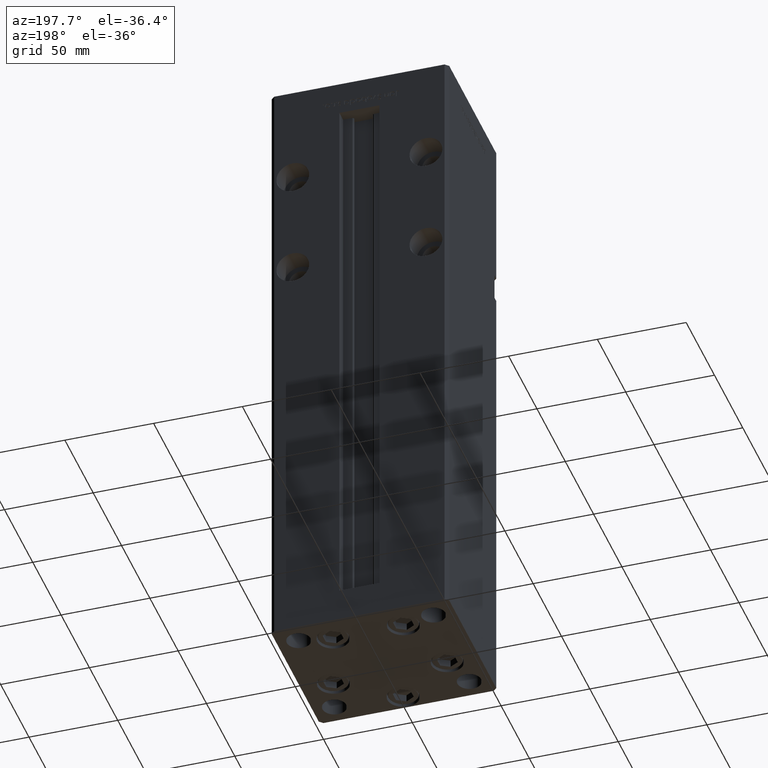
[diagram: clean part render]
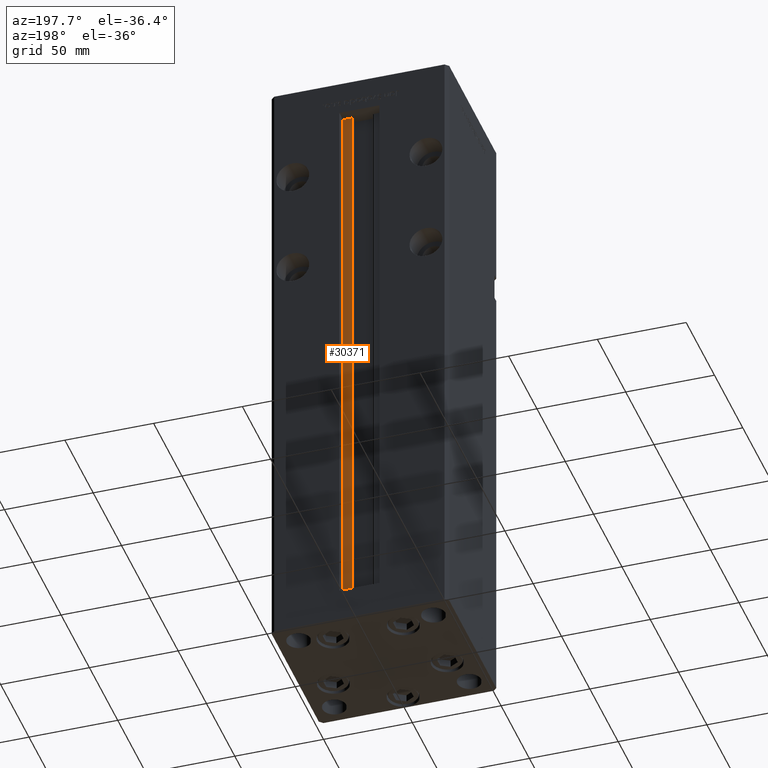
[diagram: same view with one face highlighted and labeled with its STEP entity id]
A machine part, auxiliary view. The second image highlights one B-rep face of the part: STEP entity #30371.
In plain terms, the highlighted planar face has unit normal (0, -1, 0).
Its self-contained STEP definition (entity closure, byte-faithful):
#197 = EDGE_CURVE ( 'NONE', #46069, #13504, #32832, .T. ) ;
#1192 = VERTEX_POINT ( 'NONE', #17697 ) ;
#3664 = DIRECTION ( 'NONE',  ( 0.000000000000000000, -0.000000000000000000, -1.000000000000000000 ) ) ;
#4510 = CARTESIAN_POINT ( 'NONE',  ( 11.24999999999999645, 37.00000000000000000, 0.000000000000000000 ) ) ;
#9275 = ORIENTED_EDGE ( 'NONE', *, *, #21850, .F. ) ;
#11483 = DIRECTION ( 'NONE',  ( 0.000000000000000000, -1.000000000000000000, 0.000000000000000000 ) ) ;
#11815 = CARTESIAN_POINT ( 'NONE',  ( 0.000000000000000000, 37.00000000000000000, 318.5000000000000000 ) ) ;
#13504 = VERTEX_POINT ( 'NONE', #21575 ) ;
#13936 = VECTOR ( 'NONE', #47947, 1000.000000000000000 ) ;
#15839 = DIRECTION ( 'NONE',  ( -1.000000000000000000, 0.000000000000000000, 0.000000000000000000 ) ) ;
#16221 = CARTESIAN_POINT ( 'NONE',  ( 6.183333333333996151, 37.00000000000000000, 0.000000000000000000 ) ) ;
#16947 = EDGE_CURVE ( 'NONE', #1192, #35306, #43899, .T. ) ;
#17697 = CARTESIAN_POINT ( 'NONE',  ( 6.183333333333996151, 37.00000000000000000, 0.000000000000000000 ) ) ;
#19474 = DIRECTION ( 'NONE',  ( 1.000000000000000000, 0.000000000000000000, 0.000000000000000000 ) ) ;
#19543 = CARTESIAN_POINT ( 'NONE',  ( 6.183333333333996151, 37.00000000000000000, 0.000000000000000000 ) ) ;
#20472 = VECTOR ( 'NONE', #41135, 1000.000000000000000 ) ;
#21575 = CARTESIAN_POINT ( 'NONE',  ( 11.24999999999999645, 37.00000000000000000, 318.5000000000000000 ) ) ;
#21640 = ORIENTED_EDGE ( 'NONE', *, *, #16947, .T. ) ;
#21850 = EDGE_CURVE ( 'NONE', #1192, #46069, #47411, .T. ) ;
#22445 = EDGE_CURVE ( 'NONE', #13504, #35306, #31699, .T. ) ;
#22648 = VECTOR ( 'NONE', #19474, 1000.000000000000000 ) ;
#24571 = CARTESIAN_POINT ( 'NONE',  ( 6.183333333333996151, 37.00000000000000000, 318.5000000000000000 ) ) ;
#25813 = CARTESIAN_POINT ( 'NONE',  ( 11.24999999999999645, 37.00000000000000000, 0.000000000000000000 ) ) ;
#25928 = ORIENTED_EDGE ( 'NONE', *, *, #197, .F. ) ;
#30371 = ADVANCED_FACE ( 'NONE', ( #52857 ), #39679, .F. ) ;
#30441 = VECTOR ( 'NONE', #15839, 1000.000000000000000 ) ;
#31699 = LINE ( 'NONE', #11815, #30441 ) ;
#32832 = LINE ( 'NONE', #25813, #20472 ) ;
#34374 = AXIS2_PLACEMENT_3D ( 'NONE', #19543, #11483, #3664 ) ;
#35306 = VERTEX_POINT ( 'NONE', #24571 ) ;
#35855 = CARTESIAN_POINT ( 'NONE',  ( 6.183333333333996151, 37.00000000000000000, 0.000000000000000000 ) ) ;
#37262 = ORIENTED_EDGE ( 'NONE', *, *, #22445, .F. ) ;
#39679 = PLANE ( 'NONE',  #34374 ) ;
#41135 = DIRECTION ( 'NONE',  ( -0.000000000000000000, -0.000000000000000000, 1.000000000000000000 ) ) ;
#43899 = LINE ( 'NONE', #16221, #13936 ) ;
#46069 = VERTEX_POINT ( 'NONE', #4510 ) ;
#47411 = LINE ( 'NONE', #35855, #22648 ) ;
#47947 = DIRECTION ( 'NONE',  ( -0.000000000000000000, -0.000000000000000000, 1.000000000000000000 ) ) ;
#51087 = EDGE_LOOP ( 'NONE', ( #25928, #9275, #21640, #37262 ) ) ;
#52857 = FACE_OUTER_BOUND ( 'NONE', #51087, .T. ) ;